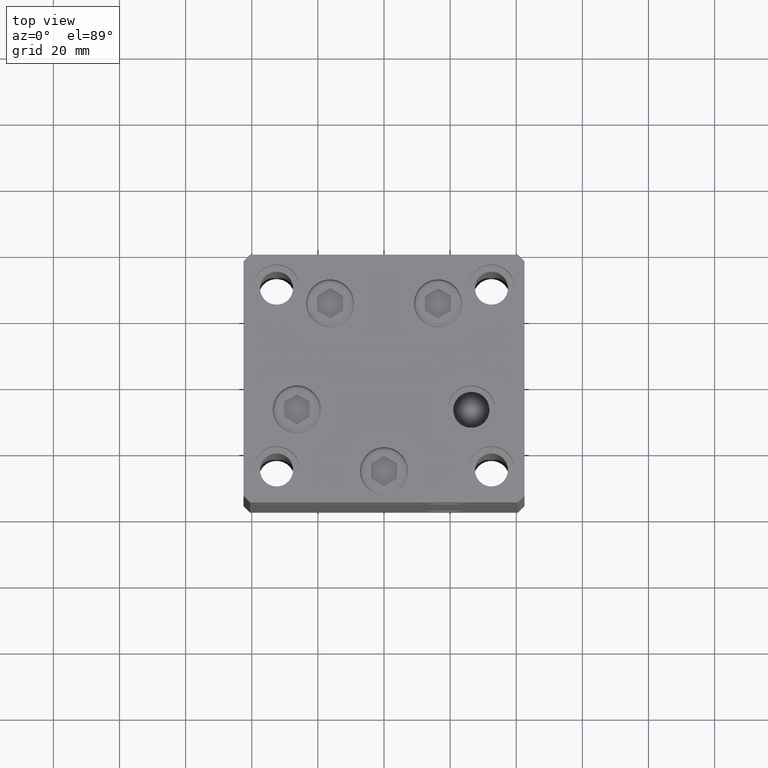
[diagram: clean part render]
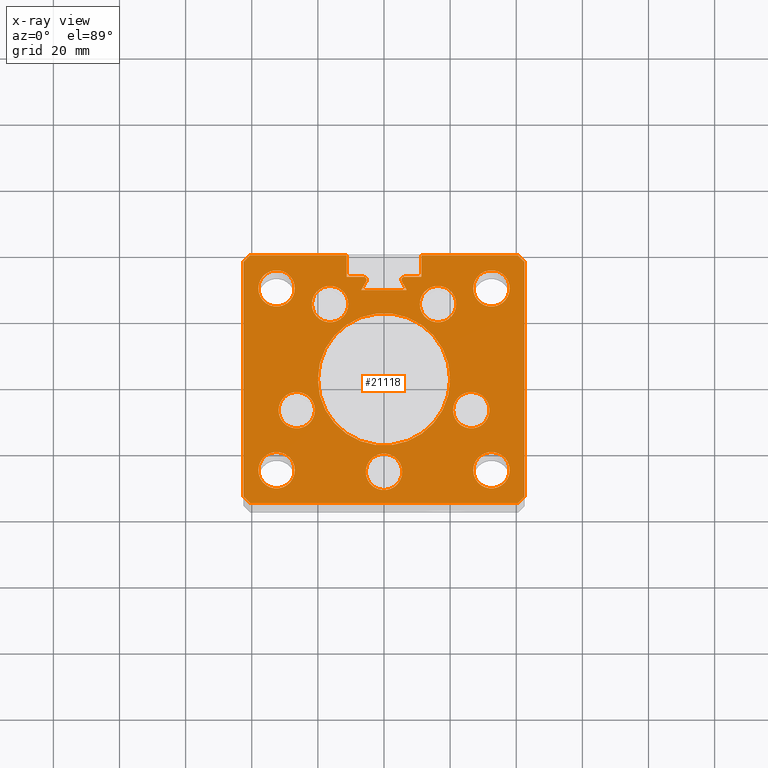
[diagram: x-ray — body ghosted, one internal face saturated and labeled with its STEP entity id]
A machine part, top view, then the same camera in x-ray: the body is ghosted and one INTERNAL B-rep face — a face not visible from any outside direction — is saturated and labeled: STEP entity #21118.
In plain terms, the highlighted planar face has unit normal (0, 0, -1).
Its self-contained STEP definition (entity closure, byte-faithful):
#22 = EDGE_CURVE ( 'NONE', #7275, #42875, #41219, .T. ) ;
#90 = DIRECTION ( 'NONE',  ( 1.000000000000000000, 0.000000000000000000, 0.000000000000000000 ) ) ;
#315 = VERTEX_POINT ( 'NONE', #40891 ) ;
#954 = CARTESIAN_POINT ( 'NONE',  ( -16.84845819336021577, 9.727461873366683776, 148.5000000000000000 ) ) ;
#1031 = EDGE_CURVE ( 'NONE', #24455, #20260, #23022, .T. ) ;
#1201 = VECTOR ( 'NONE', #41686, 1000.000000000000000 ) ;
#1349 = FACE_OUTER_BOUND ( 'NONE', #19197, .T. ) ;
#1579 = CARTESIAN_POINT ( 'NONE',  ( 0.000000000000000000, 26.99999999999986855, 148.5000000000000000 ) ) ;
#1604 = FACE_BOUND ( 'NONE', #13391, .T. ) ;
#1746 = LINE ( 'NONE', #9046, #34076 ) ;
#1809 = CARTESIAN_POINT ( 'NONE',  ( -11.25000000000000000, 37.50000000000000000, 148.5000000000000000 ) ) ;
#1833 = DIRECTION ( 'NONE',  ( 0.000000000000000000, 0.000000000000000000, 1.000000000000000000 ) ) ;
#2020 = ORIENTED_EDGE ( 'NONE', *, *, #4101, .F. ) ;
#2062 = DIRECTION ( 'NONE',  ( 1.000000000000000000, 0.000000000000000000, 0.000000000000000000 ) ) ;
#2110 = LINE ( 'NONE', #48098, #29634 ) ;
#2571 = ORIENTED_EDGE ( 'NONE', *, *, #13301, .F. ) ;
#2730 = CARTESIAN_POINT ( 'NONE',  ( -40.49999999999998579, -37.50000000000000711, 148.5000000000000000 ) ) ;
#2788 = VECTOR ( 'NONE', #43363, 1000.000000000000000 ) ;
#2825 = CIRCLE ( 'NONE', #47731, 5.499999999999998224 ) ;
#2934 = AXIS2_PLACEMENT_3D ( 'NONE', #34284, #34528, #90 ) ;
#3090 = CARTESIAN_POINT ( 'NONE',  ( -11.25000000000000000, 30.99999999999999289, 148.5000000000000000 ) ) ;
#3270 = DIRECTION ( 'NONE',  ( 1.000000000000000000, 0.000000000000000000, 0.000000000000000000 ) ) ;
#3500 = AXIS2_PLACEMENT_3D ( 'NONE', #33336, #6198, #29320 ) ;
#3655 = CIRCLE ( 'NONE', #17262, 0.9333333333340015914 ) ;
#3725 = LINE ( 'NONE', #26103, #44119 ) ;
#3759 = AXIS2_PLACEMENT_3D ( 'NONE', #28966, #40761, #36994 ) ;
#3783 = EDGE_LOOP ( 'NONE', ( #2571, #10118 ) ) ;
#3925 = CARTESIAN_POINT ( 'NONE',  ( -21.82291334290543361, 22.74999999999999645, 148.5000000000000000 ) ) ;
#3943 = CIRCLE ( 'NONE', #27998, 20.00000000000000000 ) ;
#3990 = DIRECTION ( 'NONE',  ( 1.000000000000000000, 0.000000000000000000, 0.000000000000000000 ) ) ;
#4101 = EDGE_CURVE ( 'NONE', #20260, #24455, #21990, .T. ) ;
#4199 = CARTESIAN_POINT ( 'NONE',  ( -6.183333333333999704, 30.06666666666599141, 148.5000000000000000 ) ) ;
#4233 = DIRECTION ( 'NONE',  ( 0.000000000000000000, 0.000000000000000000, 1.000000000000000000 ) ) ;
#4463 = CARTESIAN_POINT ( 'NONE',  ( -32.50000000000000000, 27.50000000000000000, 148.5000000000000000 ) ) ;
#4555 = CIRCLE ( 'NONE', #3759, 0.9333333333340015914 ) ;
#5126 = FACE_BOUND ( 'NONE', #34935, .T. ) ;
#5300 = DIRECTION ( 'NONE',  ( 0.5000000000000003331, -0.8660254037844384856, 0.000000000000000000 ) ) ;
#5668 = DIRECTION ( 'NONE',  ( 1.000000000000000000, 0.000000000000000000, 0.000000000000000000 ) ) ;
#5676 = EDGE_CURVE ( 'NONE', #46106, #25407, #1746, .T. ) ;
#5687 = CARTESIAN_POINT ( 'NONE',  ( 0.000000000000000000, 30.99999999999999289, 148.5000000000000000 ) ) ;
#5735 = EDGE_CURVE ( 'NONE', #11849, #6935, #6514, .T. ) ;
#5811 = EDGE_CURVE ( 'NONE', #25407, #14091, #33892, .T. ) ;
#5856 = ORIENTED_EDGE ( 'NONE', *, *, #34724, .F. ) ;
#5879 = DIRECTION ( 'NONE',  ( 1.000000000000000000, 0.000000000000000000, 0.000000000000000000 ) ) ;
#6023 = DIRECTION ( 'NONE',  ( 0.7071067811865474617, -0.7071067811865474617, 0.000000000000000000 ) ) ;
#6198 = DIRECTION ( 'NONE',  ( 0.000000000000000000, 0.000000000000000000, 1.000000000000000000 ) ) ;
#6288 = DIRECTION ( 'NONE',  ( 1.000000000000000000, 0.000000000000000000, 0.000000000000000000 ) ) ;
#6485 = VERTEX_POINT ( 'NONE', #39663 ) ;
#6514 = LINE ( 'NONE', #48731, #22851 ) ;
#6796 = CARTESIAN_POINT ( 'NONE',  ( -11.25000000000000000, 37.50000000000000000, 148.5000000000000000 ) ) ;
#6808 = VERTEX_POINT ( 'NONE', #3090 ) ;
#6935 = VERTEX_POINT ( 'NONE', #38509 ) ;
#7117 = DIRECTION ( 'NONE',  ( 1.000000000000000000, 0.000000000000000000, 0.000000000000000000 ) ) ;
#7275 = VERTEX_POINT ( 'NONE', #18841 ) ;
#7320 = CARTESIAN_POINT ( 'NONE',  ( -20.89865316429776598, -9.333333333333339255, 148.5000000000000000 ) ) ;
#7774 = VERTEX_POINT ( 'NONE', #34319 ) ;
#7825 = VECTOR ( 'NONE', #39155, 1000.000000000000114 ) ;
#8238 = DIRECTION ( 'NONE',  ( 1.000000000000000000, 0.000000000000000000, 0.000000000000000000 ) ) ;
#8419 = PLANE ( 'NONE',  #29675 ) ;
#8440 = VECTOR ( 'NONE', #21912, 1000.000000000000000 ) ;
#8564 = VERTEX_POINT ( 'NONE', #23752 ) ;
#8636 = CARTESIAN_POINT ( 'NONE',  ( 40.49999999999998579, -37.50000000000000711, 148.5000000000000000 ) ) ;
#8637 = CARTESIAN_POINT ( 'NONE',  ( -42.49999999999998579, -35.50000000000000711, 148.5000000000000000 ) ) ;
#8910 = FACE_BOUND ( 'NONE', #40242, .T. ) ;
#9046 = CARTESIAN_POINT ( 'NONE',  ( -42.49999999999998579, -35.50000000000000711, 148.5000000000000000 ) ) ;
#9145 = FACE_BOUND ( 'NONE', #29480, .T. ) ;
#9404 = CARTESIAN_POINT ( 'NONE',  ( -26.39865316429776598, -9.333333333333339255, 148.5000000000000000 ) ) ;
#9453 = DIRECTION ( 'NONE',  ( -0.000000000000000000, 0.000000000000000000, 1.000000000000000000 ) ) ;
#9501 = EDGE_CURVE ( 'NONE', #28678, #7774, #42113, .T. ) ;
#9504 = ORIENTED_EDGE ( 'NONE', *, *, #35222, .F. ) ;
#9526 = DIRECTION ( 'NONE',  ( 1.000000000000000000, 0.000000000000000000, 0.000000000000000000 ) ) ;
#9577 = VERTEX_POINT ( 'NONE', #39137 ) ;
#9705 = DIRECTION ( 'NONE',  ( -1.000000000000000000, 0.000000000000000000, 0.000000000000000000 ) ) ;
#9988 = VERTEX_POINT ( 'NONE', #36066 ) ;
#9997 = ORIENTED_EDGE ( 'NONE', *, *, #5735, .T. ) ;
#10059 = DIRECTION ( 'NONE',  ( 0.000000000000000000, 0.000000000000000000, 1.000000000000000000 ) ) ;
#10066 = EDGE_CURVE ( 'NONE', #25152, #43328, #47730, .T. ) ;
#10082 = CIRCLE ( 'NONE', #45372, 5.500000000000001776 ) ;
#10116 = CARTESIAN_POINT ( 'NONE',  ( -11.25000000000000000, 0.000000000000000000, 148.5000000000000000 ) ) ;
#10118 = ORIENTED_EDGE ( 'NONE', *, *, #26405, .F. ) ;
#10245 = EDGE_CURVE ( 'NONE', #45808, #32610, #31749, .T. ) ;
#10253 = CARTESIAN_POINT ( 'NONE',  ( -40.50000000000000000, 37.50000000000000711, 148.5000000000000000 ) ) ;
#10306 = CARTESIAN_POINT ( 'NONE',  ( 42.50000000000000711, 35.50000000000001421, 148.5000000000000000 ) ) ;
#10992 = ORIENTED_EDGE ( 'NONE', *, *, #37561, .F. ) ;
#11051 = LINE ( 'NONE', #1579, #15015 ) ;
#11166 = CARTESIAN_POINT ( 'NONE',  ( -40.49999999999998579, -37.50000000000000711, 148.5000000000000000 ) ) ;
#11279 = ORIENTED_EDGE ( 'NONE', *, *, #46592, .T. ) ;
#11288 = ORIENTED_EDGE ( 'NONE', *, *, #13438, .F. ) ;
#11468 = CARTESIAN_POINT ( 'NONE',  ( -6.876153656360465938, 26.99999999999986855, 148.5000000000000000 ) ) ;
#11514 = VERTEX_POINT ( 'NONE', #29670 ) ;
#11559 = EDGE_LOOP ( 'NONE', ( #13563, #19847 ) ) ;
#11567 = ORIENTED_EDGE ( 'NONE', *, *, #29858, .F. ) ;
#11648 = DIRECTION ( 'NONE',  ( 0.000000000000000000, 0.000000000000000000, 1.000000000000000000 ) ) ;
#11849 = VERTEX_POINT ( 'NONE', #10253 ) ;
#12341 = DIRECTION ( 'NONE',  ( 0.000000000000000000, 0.000000000000000000, 1.000000000000000000 ) ) ;
#12518 = DIRECTION ( 'NONE',  ( 1.000000000000000000, 0.000000000000000000, 0.000000000000000000 ) ) ;
#12614 = LINE ( 'NONE', #23926, #14367 ) ;
#12716 = DIRECTION ( 'NONE',  ( 0.000000000000000000, 0.000000000000000000, -1.000000000000000000 ) ) ;
#13074 = VERTEX_POINT ( 'NONE', #11468 ) ;
#13153 = FACE_BOUND ( 'NONE', #11559, .T. ) ;
#13217 = CIRCLE ( 'NONE', #47725, 20.00000000000000000 ) ;
#13301 = EDGE_CURVE ( 'NONE', #47466, #31206, #41462, .T. ) ;
#13391 = EDGE_LOOP ( 'NONE', ( #18066, #2020 ) ) ;
#13438 = EDGE_CURVE ( 'NONE', #9577, #9988, #4555, .T. ) ;
#13463 = DIRECTION ( 'NONE',  ( 1.000000000000000000, 0.000000000000000000, 0.000000000000000000 ) ) ;
#13563 = ORIENTED_EDGE ( 'NONE', *, *, #32580, .F. ) ;
#13856 = CARTESIAN_POINT ( 'NONE',  ( 6.183333333333999704, 30.06666666666599141, 148.5000000000000000 ) ) ;
#13997 = ORIENTED_EDGE ( 'NONE', *, *, #25685, .F. ) ;
#14091 = VERTEX_POINT ( 'NONE', #8636 ) ;
#14318 = DIRECTION ( 'NONE',  ( 0.000000000000000000, 0.000000000000000000, 1.000000000000000000 ) ) ;
#14367 = VECTOR ( 'NONE', #35239, 1000.000000000000000 ) ;
#14414 = DIRECTION ( 'NONE',  ( -0.000000000000000000, -1.000000000000000000, 0.000000000000000000 ) ) ;
#14423 = CARTESIAN_POINT ( 'NONE',  ( -10.82291334290543183, 22.74999999999999645, 148.5000000000000000 ) ) ;
#15015 = VECTOR ( 'NONE', #32251, 1000.000000000000000 ) ;
#15090 = CIRCLE ( 'NONE', #23915, 5.500000000000000000 ) ;
#15139 = DIRECTION ( 'NONE',  ( 0.000000000000000000, 0.000000000000000000, 1.000000000000000000 ) ) ;
#15327 = ORIENTED_EDGE ( 'NONE', *, *, #31472, .F. ) ;
#15756 = DIRECTION ( 'NONE',  ( 0.000000000000000000, 0.000000000000000000, 1.000000000000000000 ) ) ;
#15794 = DIRECTION ( 'NONE',  ( 0.000000000000000000, 0.000000000000000000, 1.000000000000000000 ) ) ;
#15909 = DIRECTION ( 'NONE',  ( 0.000000000000000000, 0.000000000000000000, 1.000000000000000000 ) ) ;
#16528 = CIRCLE ( 'NONE', #34214, 0.9333333333340015914 ) ;
#16625 = DIRECTION ( 'NONE',  ( 0.000000000000000000, 0.000000000000000000, 1.000000000000000000 ) ) ;
#16655 = CARTESIAN_POINT ( 'NONE',  ( 0.000000000000000000, 0.000000000000000000, 148.5000000000000000 ) ) ;
#16835 = DIRECTION ( 'NONE',  ( -0.000000000000000000, 0.000000000000000000, 1.000000000000000000 ) ) ;
#17262 = AXIS2_PLACEMENT_3D ( 'NONE', #4199, #12716, #19762 ) ;
#17457 = EDGE_CURVE ( 'NONE', #43328, #25152, #15090, .T. ) ;
#17509 = AXIS2_PLACEMENT_3D ( 'NONE', #20238, #35570, #44354 ) ;
#17579 = DIRECTION ( 'NONE',  ( 1.000000000000000000, 0.000000000000000000, 0.000000000000000000 ) ) ;
#17597 = CARTESIAN_POINT ( 'NONE',  ( -38.00000000000000000, 27.50000000000000000, 148.5000000000000000 ) ) ;
#17644 = EDGE_CURVE ( 'NONE', #20622, #11514, #23126, .T. ) ;
#17877 = LINE ( 'NONE', #10116, #8440 ) ;
#18066 = ORIENTED_EDGE ( 'NONE', *, *, #1031, .F. ) ;
#18284 = ORIENTED_EDGE ( 'NONE', *, *, #42801, .T. ) ;
#18549 = AXIS2_PLACEMENT_3D ( 'NONE', #37512, #15139, #7117 ) ;
#18736 = CIRCLE ( 'NONE', #3500, 5.499999999999998224 ) ;
#18834 = ORIENTED_EDGE ( 'NONE', *, *, #22486, .F. ) ;
#18841 = CARTESIAN_POINT ( 'NONE',  ( 11.24999999999999289, 37.50000000000000000, 148.5000000000000000 ) ) ;
#18935 = CARTESIAN_POINT ( 'NONE',  ( 3.429011037612589276E-15, -28.00000000000000000, 148.5000000000000000 ) ) ;
#19048 = ORIENTED_EDGE ( 'NONE', *, *, #5676, .T. ) ;
#19140 = CARTESIAN_POINT ( 'NONE',  ( 20.00000000000000000, 2.449293598294706513E-15, 148.5000000000000000 ) ) ;
#19197 = EDGE_LOOP ( 'NONE', ( #42349, #22028, #13997, #9997, #46099, #19048, #25308, #48166, #33863, #25237, #48390, #19293, #33619, #28062, #11279, #43699, #18284, #9504, #11288 ) ) ;
#19207 = VERTEX_POINT ( 'NONE', #38953 ) ;
#19249 = DIRECTION ( 'NONE',  ( -0.7071067811865474617, -0.7071067811865474617, 0.000000000000000000 ) ) ;
#19253 = VECTOR ( 'NONE', #19249, 1000.000000000000114 ) ;
#19293 = ORIENTED_EDGE ( 'NONE', *, *, #23997, .T. ) ;
#19715 = DIRECTION ( 'NONE',  ( 0.000000000000000000, 0.000000000000000000, -1.000000000000000000 ) ) ;
#19762 = DIRECTION ( 'NONE',  ( 1.000000000000000000, 0.000000000000000000, 0.000000000000000000 ) ) ;
#19787 = AXIS2_PLACEMENT_3D ( 'NONE', #41809, #25977, #48847 ) ;
#19847 = ORIENTED_EDGE ( 'NONE', *, *, #9501, .F. ) ;
#19866 = EDGE_CURVE ( 'NONE', #40541, #6485, #40107, .T. ) ;
#20056 = CARTESIAN_POINT ( 'NONE',  ( 16.32291334290542295, 22.75000000000000000, 148.5000000000000000 ) ) ;
#20238 = CARTESIAN_POINT ( 'NONE',  ( -32.50000000000000000, -27.50000000000000000, 148.5000000000000000 ) ) ;
#20260 = VERTEX_POINT ( 'NONE', #29233 ) ;
#20424 = ORIENTED_EDGE ( 'NONE', *, *, #34767, .F. ) ;
#20445 = FACE_BOUND ( 'NONE', #32973, .T. ) ;
#20622 = VERTEX_POINT ( 'NONE', #17597 ) ;
#20863 = AXIS2_PLACEMENT_3D ( 'NONE', #46136, #16625, #47307 ) ;
#21118 = ADVANCED_FACE ( 'NONE', ( #8910, #27503, #39546, #5126, #1604, #13153, #28239, #20445, #38807, #1349, #9145 ), #8419, .F. ) ;
#21190 = AXIS2_PLACEMENT_3D ( 'NONE', #9404, #47836, #5879 ) ;
#21587 = CIRCLE ( 'NONE', #44863, 5.499999999999998224 ) ;
#21912 = DIRECTION ( 'NONE',  ( 0.000000000000000000, 1.000000000000000000, 0.000000000000000000 ) ) ;
#21990 = CIRCLE ( 'NONE', #21190, 5.500000000000001776 ) ;
#22028 = ORIENTED_EDGE ( 'NONE', *, *, #34471, .T. ) ;
#22298 = CARTESIAN_POINT ( 'NONE',  ( 27.00000000000000355, -27.50000000000000000, 148.5000000000000000 ) ) ;
#22317 = EDGE_CURVE ( 'NONE', #42875, #33932, #3725, .T. ) ;
#22358 = VERTEX_POINT ( 'NONE', #41428 ) ;
#22486 = EDGE_CURVE ( 'NONE', #19207, #26172, #25609, .T. ) ;
#22582 = EDGE_CURVE ( 'NONE', #37264, #46538, #3943, .T. ) ;
#22851 = VECTOR ( 'NONE', #30133, 1000.000000000000114 ) ;
#22935 = VERTEX_POINT ( 'NONE', #31844 ) ;
#23022 = CIRCLE ( 'NONE', #19787, 5.500000000000001776 ) ;
#23126 = CIRCLE ( 'NONE', #27928, 5.499999999999998224 ) ;
#23414 = CARTESIAN_POINT ( 'NONE',  ( 16.32291334290542295, 22.75000000000000000, 148.5000000000000000 ) ) ;
#23666 = AXIS2_PLACEMENT_3D ( 'NONE', #36445, #10059, #6288 ) ;
#23752 = CARTESIAN_POINT ( 'NONE',  ( -38.00000000000000000, -27.50000000000000000, 148.5000000000000000 ) ) ;
#23767 = CARTESIAN_POINT ( 'NONE',  ( 0.000000000000000000, 30.99999999999999289, 148.5000000000000000 ) ) ;
#23915 = AXIS2_PLACEMENT_3D ( 'NONE', #36408, #24603, #9526 ) ;
#23926 = CARTESIAN_POINT ( 'NONE',  ( 42.50000000000000711, 35.50000000000001421, 148.5000000000000000 ) ) ;
#23997 = EDGE_CURVE ( 'NONE', #7275, #40541, #2110, .T. ) ;
#24300 = EDGE_CURVE ( 'NONE', #33932, #37398, #12614, .T. ) ;
#24455 = VERTEX_POINT ( 'NONE', #7320 ) ;
#24527 = EDGE_CURVE ( 'NONE', #6935, #46106, #38698, .T. ) ;
#24603 = DIRECTION ( 'NONE',  ( 0.000000000000000000, 0.000000000000000000, 1.000000000000000000 ) ) ;
#24646 = LINE ( 'NONE', #35453, #29595 ) ;
#24911 = ORIENTED_EDGE ( 'NONE', *, *, #17644, .F. ) ;
#25133 = EDGE_CURVE ( 'NONE', #37398, #14091, #42621, .T. ) ;
#25152 = VERTEX_POINT ( 'NONE', #3925 ) ;
#25203 = DIRECTION ( 'NONE',  ( 1.000000000000000000, 0.000000000000000000, 0.000000000000000000 ) ) ;
#25237 = ORIENTED_EDGE ( 'NONE', *, *, #22317, .F. ) ;
#25249 = DIRECTION ( 'NONE',  ( 0.000000000000000000, 0.000000000000000000, 1.000000000000000000 ) ) ;
#25308 = ORIENTED_EDGE ( 'NONE', *, *, #5811, .T. ) ;
#25407 = VERTEX_POINT ( 'NONE', #11166 ) ;
#25609 = CIRCLE ( 'NONE', #36830, 5.500000000000001776 ) ;
#25685 = EDGE_CURVE ( 'NONE', #11849, #35151, #32982, .T. ) ;
#25862 = DIRECTION ( 'NONE',  ( 0.7071067811865500152, -0.7071067811865451302, 0.000000000000000000 ) ) ;
#25977 = DIRECTION ( 'NONE',  ( 0.000000000000000000, 0.000000000000000000, 1.000000000000000000 ) ) ;
#26072 = ORIENTED_EDGE ( 'NONE', *, *, #22582, .F. ) ;
#26076 = AXIS2_PLACEMENT_3D ( 'NONE', #40081, #25249, #5668 ) ;
#26103 = CARTESIAN_POINT ( 'NONE',  ( 40.50000000000000000, 37.50000000000000711, 148.5000000000000000 ) ) ;
#26172 = VERTEX_POINT ( 'NONE', #35876 ) ;
#26405 = EDGE_CURVE ( 'NONE', #31206, #47466, #42544, .T. ) ;
#26641 = CARTESIAN_POINT ( 'NONE',  ( -20.00000000000000000, 0.000000000000000000, 148.5000000000000000 ) ) ;
#27129 = CARTESIAN_POINT ( 'NONE',  ( 5.375042956467944499, 29.59999999999899245, 148.5000000000000000 ) ) ;
#27187 = CIRCLE ( 'NONE', #17509, 5.499999999999998224 ) ;
#27306 = CARTESIAN_POINT ( 'NONE',  ( 42.49999999999998579, -35.50000000000000711, 148.5000000000000000 ) ) ;
#27503 = FACE_BOUND ( 'NONE', #35449, .T. ) ;
#27918 = CARTESIAN_POINT ( 'NONE',  ( 0.000000000000000000, 0.000000000000000000, 148.5000000000000000 ) ) ;
#27928 = AXIS2_PLACEMENT_3D ( 'NONE', #4463, #15756, #8238 ) ;
#27998 = AXIS2_PLACEMENT_3D ( 'NONE', #27918, #16835, #47263 ) ;
#28062 = ORIENTED_EDGE ( 'NONE', *, *, #40809, .F. ) ;
#28133 = VERTEX_POINT ( 'NONE', #27129 ) ;
#28162 = EDGE_LOOP ( 'NONE', ( #20424, #5856 ) ) ;
#28239 = FACE_BOUND ( 'NONE', #3783, .T. ) ;
#28525 = LINE ( 'NONE', #23767, #2788 ) ;
#28678 = VERTEX_POINT ( 'NONE', #48148 ) ;
#28930 = ORIENTED_EDGE ( 'NONE', *, *, #10066, .F. ) ;
#28966 = CARTESIAN_POINT ( 'NONE',  ( -6.183333333333999704, 30.06666666666599141, 148.5000000000000000 ) ) ;
#29196 = DIRECTION ( 'NONE',  ( 0.000000000000000000, 0.000000000000000000, -1.000000000000000000 ) ) ;
#29233 = CARTESIAN_POINT ( 'NONE',  ( -31.89865316429776954, -9.333333333333339255, 148.5000000000000000 ) ) ;
#29320 = DIRECTION ( 'NONE',  ( 1.000000000000000000, 0.000000000000000000, 0.000000000000000000 ) ) ;
#29480 = EDGE_LOOP ( 'NONE', ( #26072, #10992 ) ) ;
#29595 = VECTOR ( 'NONE', #5300, 1000.000000000000114 ) ;
#29634 = VECTOR ( 'NONE', #14414, 1000.000000000000000 ) ;
#29653 = ORIENTED_EDGE ( 'NONE', *, *, #47082, .F. ) ;
#29670 = CARTESIAN_POINT ( 'NONE',  ( -27.00000000000000355, 27.50000000000000000, 148.5000000000000000 ) ) ;
#29675 = AXIS2_PLACEMENT_3D ( 'NONE', #16655, #19715, #43567 ) ;
#29858 = EDGE_CURVE ( 'NONE', #8564, #32499, #42644, .T. ) ;
#30133 = DIRECTION ( 'NONE',  ( -0.7071067811865500152, -0.7071067811865451302, 0.000000000000000000 ) ) ;
#30240 = ORIENTED_EDGE ( 'NONE', *, *, #45921, .F. ) ;
#30934 = ORIENTED_EDGE ( 'NONE', *, *, #10245, .F. ) ;
#31016 = DIRECTION ( 'NONE',  ( 1.000000000000000000, 0.000000000000000000, 0.000000000000000000 ) ) ;
#31134 = CARTESIAN_POINT ( 'NONE',  ( 3.429011037612589276E-15, -28.00000000000000000, 148.5000000000000000 ) ) ;
#31186 = CARTESIAN_POINT ( 'NONE',  ( -42.50000000000000711, 35.50000000000001421, 148.5000000000000000 ) ) ;
#31206 = VERTEX_POINT ( 'NONE', #46173 ) ;
#31429 = DIRECTION ( 'NONE',  ( 2.931927001650941360E-16, -1.000000000000000000, 0.000000000000000000 ) ) ;
#31472 = EDGE_CURVE ( 'NONE', #32610, #45808, #18736, .T. ) ;
#31502 = DIRECTION ( 'NONE',  ( 1.000000000000000000, 0.000000000000000000, 0.000000000000000000 ) ) ;
#31729 = ORIENTED_EDGE ( 'NONE', *, *, #34946, .F. ) ;
#31749 = CIRCLE ( 'NONE', #46153, 5.499999999999998224 ) ;
#31844 = CARTESIAN_POINT ( 'NONE',  ( 38.00000000000000000, 27.50000000000000000, 148.5000000000000000 ) ) ;
#32034 = VECTOR ( 'NONE', #9705, 1000.000000000000000 ) ;
#32251 = DIRECTION ( 'NONE',  ( -1.000000000000000000, 0.000000000000000000, 0.000000000000000000 ) ) ;
#32499 = VERTEX_POINT ( 'NONE', #49111 ) ;
#32580 = EDGE_CURVE ( 'NONE', #7774, #28678, #40490, .T. ) ;
#32610 = VERTEX_POINT ( 'NONE', #45833 ) ;
#32634 = CARTESIAN_POINT ( 'NONE',  ( 40.50000000000000000, 37.50000000000000711, 148.5000000000000000 ) ) ;
#32973 = EDGE_LOOP ( 'NONE', ( #18834, #31729 ) ) ;
#32982 = LINE ( 'NONE', #1809, #44936 ) ;
#33275 = EDGE_CURVE ( 'NONE', #9577, #6808, #28525, .T. ) ;
#33336 = CARTESIAN_POINT ( 'NONE',  ( 32.50000000000000000, -27.50000000000000000, 148.5000000000000000 ) ) ;
#33619 = ORIENTED_EDGE ( 'NONE', *, *, #19866, .T. ) ;
#33863 = ORIENTED_EDGE ( 'NONE', *, *, #24300, .F. ) ;
#33892 = LINE ( 'NONE', #2730, #1201 ) ;
#33932 = VERTEX_POINT ( 'NONE', #10306 ) ;
#34076 = VECTOR ( 'NONE', #6023, 1000.000000000000114 ) ;
#34087 = VECTOR ( 'NONE', #3270, 1000.000000000000000 ) ;
#34214 = AXIS2_PLACEMENT_3D ( 'NONE', #13856, #29196, #44516 ) ;
#34284 = CARTESIAN_POINT ( 'NONE',  ( 26.39865316429776598, -9.333333333333332149, 148.5000000000000000 ) ) ;
#34319 = CARTESIAN_POINT ( 'NONE',  ( 5.500000000000003553, -28.00000000000000000, 148.5000000000000000 ) ) ;
#34471 = EDGE_CURVE ( 'NONE', #6808, #35151, #17877, .T. ) ;
#34528 = DIRECTION ( 'NONE',  ( 0.000000000000000000, 0.000000000000000000, 1.000000000000000000 ) ) ;
#34724 = EDGE_CURVE ( 'NONE', #315, #22935, #2825, .T. ) ;
#34767 = EDGE_CURVE ( 'NONE', #22935, #315, #38907, .T. ) ;
#34935 = EDGE_LOOP ( 'NONE', ( #29653, #24911 ) ) ;
#34946 = EDGE_CURVE ( 'NONE', #26172, #19207, #10082, .T. ) ;
#35151 = VERTEX_POINT ( 'NONE', #46645 ) ;
#35222 = EDGE_CURVE ( 'NONE', #9988, #22358, #3655, .T. ) ;
#35239 = DIRECTION ( 'NONE',  ( -2.931927001650941360E-16, -1.000000000000000000, 0.000000000000000000 ) ) ;
#35449 = EDGE_LOOP ( 'NONE', ( #15327, #30934 ) ) ;
#35453 = CARTESIAN_POINT ( 'NONE',  ( 16.84845819336021577, 9.727461873366683776, 148.5000000000000000 ) ) ;
#35570 = DIRECTION ( 'NONE',  ( 0.000000000000000000, 0.000000000000000000, 1.000000000000000000 ) ) ;
#35876 = CARTESIAN_POINT ( 'NONE',  ( 10.82291334290542473, 22.75000000000000000, 148.5000000000000000 ) ) ;
#36066 = CARTESIAN_POINT ( 'NONE',  ( -5.249999999999997335, 30.06666666666599141, 148.5000000000000000 ) ) ;
#36408 = CARTESIAN_POINT ( 'NONE',  ( -16.32291334290543006, 22.74999999999999645, 148.5000000000000000 ) ) ;
#36445 = CARTESIAN_POINT ( 'NONE',  ( 32.50000000000000000, 27.50000000000000000, 148.5000000000000000 ) ) ;
#36510 = AXIS2_PLACEMENT_3D ( 'NONE', #31134, #4233, #3990 ) ;
#36699 = CARTESIAN_POINT ( 'NONE',  ( 32.50000000000000000, 27.50000000000000000, 148.5000000000000000 ) ) ;
#36830 = AXIS2_PLACEMENT_3D ( 'NONE', #23414, #12341, #46532 ) ;
#36994 = DIRECTION ( 'NONE',  ( 1.000000000000000000, 0.000000000000000000, 0.000000000000000000 ) ) ;
#37264 = VERTEX_POINT ( 'NONE', #26641 ) ;
#37398 = VERTEX_POINT ( 'NONE', #27306 ) ;
#37512 = CARTESIAN_POINT ( 'NONE',  ( -32.50000000000000000, -27.50000000000000000, 148.5000000000000000 ) ) ;
#37531 = EDGE_LOOP ( 'NONE', ( #44139, #28930 ) ) ;
#37561 = EDGE_CURVE ( 'NONE', #46538, #37264, #13217, .T. ) ;
#38509 = CARTESIAN_POINT ( 'NONE',  ( -42.50000000000000711, 35.50000000000001421, 148.5000000000000000 ) ) ;
#38523 = CARTESIAN_POINT ( 'NONE',  ( 11.25000000000000000, 30.99999999999999289, 148.5000000000000000 ) ) ;
#38594 = CARTESIAN_POINT ( 'NONE',  ( 42.49999999999998579, -35.50000000000000711, 148.5000000000000000 ) ) ;
#38698 = LINE ( 'NONE', #31186, #48090 ) ;
#38807 = FACE_BOUND ( 'NONE', #37531, .T. ) ;
#38907 = CIRCLE ( 'NONE', #23666, 5.499999999999998224 ) ;
#38953 = CARTESIAN_POINT ( 'NONE',  ( 21.82291334290542650, 22.75000000000000000, 148.5000000000000000 ) ) ;
#39137 = CARTESIAN_POINT ( 'NONE',  ( -6.183333333333999704, 30.99999999999999289, 148.5000000000000000 ) ) ;
#39155 = DIRECTION ( 'NONE',  ( 0.5000000000000003331, 0.8660254037844384856, 0.000000000000000000 ) ) ;
#39546 = FACE_BOUND ( 'NONE', #28162, .T. ) ;
#39663 = CARTESIAN_POINT ( 'NONE',  ( 6.183333333333999704, 30.99999999999999289, 148.5000000000000000 ) ) ;
#39696 = AXIS2_PLACEMENT_3D ( 'NONE', #18935, #11648, #31016 ) ;
#40081 = CARTESIAN_POINT ( 'NONE',  ( -16.32291334290543006, 22.74999999999999645, 148.5000000000000000 ) ) ;
#40107 = LINE ( 'NONE', #5687, #32034 ) ;
#40242 = EDGE_LOOP ( 'NONE', ( #30240, #11567 ) ) ;
#40465 = VERTEX_POINT ( 'NONE', #42787 ) ;
#40490 = CIRCLE ( 'NONE', #39696, 5.500000000000000000 ) ;
#40541 = VERTEX_POINT ( 'NONE', #38523 ) ;
#40761 = DIRECTION ( 'NONE',  ( 0.000000000000000000, 0.000000000000000000, -1.000000000000000000 ) ) ;
#40809 = EDGE_CURVE ( 'NONE', #28133, #6485, #16528, .T. ) ;
#40891 = CARTESIAN_POINT ( 'NONE',  ( 27.00000000000000355, 27.50000000000000000, 148.5000000000000000 ) ) ;
#41219 = LINE ( 'NONE', #6796, #34087 ) ;
#41428 = CARTESIAN_POINT ( 'NONE',  ( -5.375042956467944499, 29.59999999999899600, 148.4999999999999716 ) ) ;
#41462 = CIRCLE ( 'NONE', #2934, 5.500000000000001776 ) ;
#41686 = DIRECTION ( 'NONE',  ( 1.000000000000000000, 0.000000000000000000, 0.000000000000000000 ) ) ;
#41809 = CARTESIAN_POINT ( 'NONE',  ( -26.39865316429776598, -9.333333333333339255, 148.5000000000000000 ) ) ;
#42113 = CIRCLE ( 'NONE', #36510, 5.500000000000000000 ) ;
#42349 = ORIENTED_EDGE ( 'NONE', *, *, #33275, .T. ) ;
#42544 = CIRCLE ( 'NONE', #20863, 5.500000000000001776 ) ;
#42621 = LINE ( 'NONE', #38594, #19253 ) ;
#42644 = CIRCLE ( 'NONE', #18549, 5.499999999999998224 ) ;
#42688 = EDGE_CURVE ( 'NONE', #40465, #13074, #11051, .T. ) ;
#42787 = CARTESIAN_POINT ( 'NONE',  ( 6.876153656360465938, 26.99999999999986855, 148.5000000000000000 ) ) ;
#42799 = CARTESIAN_POINT ( 'NONE',  ( 32.50000000000000000, -27.50000000000000000, 148.5000000000000000 ) ) ;
#42801 = EDGE_CURVE ( 'NONE', #13074, #22358, #47941, .T. ) ;
#42875 = VERTEX_POINT ( 'NONE', #32634 ) ;
#43328 = VERTEX_POINT ( 'NONE', #14423 ) ;
#43363 = DIRECTION ( 'NONE',  ( -1.000000000000000000, 0.000000000000000000, 0.000000000000000000 ) ) ;
#43381 = CARTESIAN_POINT ( 'NONE',  ( 0.000000000000000000, 0.000000000000000000, 148.5000000000000000 ) ) ;
#43567 = DIRECTION ( 'NONE',  ( -1.000000000000000000, 0.000000000000000000, -0.000000000000000000 ) ) ;
#43699 = ORIENTED_EDGE ( 'NONE', *, *, #42688, .T. ) ;
#44119 = VECTOR ( 'NONE', #25862, 1000.000000000000114 ) ;
#44139 = ORIENTED_EDGE ( 'NONE', *, *, #17457, .F. ) ;
#44354 = DIRECTION ( 'NONE',  ( 1.000000000000000000, 0.000000000000000000, 0.000000000000000000 ) ) ;
#44516 = DIRECTION ( 'NONE',  ( 1.000000000000000000, 0.000000000000000000, 0.000000000000000000 ) ) ;
#44863 = AXIS2_PLACEMENT_3D ( 'NONE', #47322, #1833, #25203 ) ;
#44936 = VECTOR ( 'NONE', #2062, 1000.000000000000000 ) ;
#45372 = AXIS2_PLACEMENT_3D ( 'NONE', #20056, #15794, #12518 ) ;
#45808 = VERTEX_POINT ( 'NONE', #22298 ) ;
#45833 = CARTESIAN_POINT ( 'NONE',  ( 38.00000000000000000, -27.50000000000000000, 148.5000000000000000 ) ) ;
#45921 = EDGE_CURVE ( 'NONE', #32499, #8564, #27187, .T. ) ;
#46099 = ORIENTED_EDGE ( 'NONE', *, *, #24527, .T. ) ;
#46106 = VERTEX_POINT ( 'NONE', #8637 ) ;
#46136 = CARTESIAN_POINT ( 'NONE',  ( 26.39865316429776598, -9.333333333333332149, 148.5000000000000000 ) ) ;
#46153 = AXIS2_PLACEMENT_3D ( 'NONE', #42799, #15909, #31502 ) ;
#46173 = CARTESIAN_POINT ( 'NONE',  ( 20.89865316429776598, -9.333333333333332149, 148.5000000000000000 ) ) ;
#46532 = DIRECTION ( 'NONE',  ( 1.000000000000000000, 0.000000000000000000, 0.000000000000000000 ) ) ;
#46538 = VERTEX_POINT ( 'NONE', #19140 ) ;
#46592 = EDGE_CURVE ( 'NONE', #28133, #40465, #24646, .T. ) ;
#46645 = CARTESIAN_POINT ( 'NONE',  ( -11.25000000000000000, 37.50000000000000000, 148.5000000000000000 ) ) ;
#47082 = EDGE_CURVE ( 'NONE', #11514, #20622, #21587, .T. ) ;
#47263 = DIRECTION ( 'NONE',  ( 1.000000000000000000, 0.000000000000000000, 0.000000000000000000 ) ) ;
#47307 = DIRECTION ( 'NONE',  ( 1.000000000000000000, 0.000000000000000000, 0.000000000000000000 ) ) ;
#47322 = CARTESIAN_POINT ( 'NONE',  ( -32.50000000000000000, 27.50000000000000000, 148.5000000000000000 ) ) ;
#47466 = VERTEX_POINT ( 'NONE', #47757 ) ;
#47725 = AXIS2_PLACEMENT_3D ( 'NONE', #43381, #9453, #13463 ) ;
#47730 = CIRCLE ( 'NONE', #26076, 5.500000000000000000 ) ;
#47731 = AXIS2_PLACEMENT_3D ( 'NONE', #36699, #14318, #17579 ) ;
#47757 = CARTESIAN_POINT ( 'NONE',  ( 31.89865316429776954, -9.333333333333332149, 148.5000000000000000 ) ) ;
#47836 = DIRECTION ( 'NONE',  ( 0.000000000000000000, 0.000000000000000000, 1.000000000000000000 ) ) ;
#47941 = LINE ( 'NONE', #954, #7825 ) ;
#48090 = VECTOR ( 'NONE', #31429, 1000.000000000000000 ) ;
#48098 = CARTESIAN_POINT ( 'NONE',  ( 11.25000000000000000, 0.000000000000000000, 148.5000000000000000 ) ) ;
#48148 = CARTESIAN_POINT ( 'NONE',  ( -5.499999999999996447, -28.00000000000000000, 148.5000000000000000 ) ) ;
#48166 = ORIENTED_EDGE ( 'NONE', *, *, #25133, .F. ) ;
#48390 = ORIENTED_EDGE ( 'NONE', *, *, #22, .F. ) ;
#48731 = CARTESIAN_POINT ( 'NONE',  ( -40.50000000000000000, 37.50000000000000711, 148.5000000000000000 ) ) ;
#48847 = DIRECTION ( 'NONE',  ( 1.000000000000000000, 0.000000000000000000, 0.000000000000000000 ) ) ;
#49111 = CARTESIAN_POINT ( 'NONE',  ( -27.00000000000000355, -27.50000000000000000, 148.5000000000000000 ) ) ;